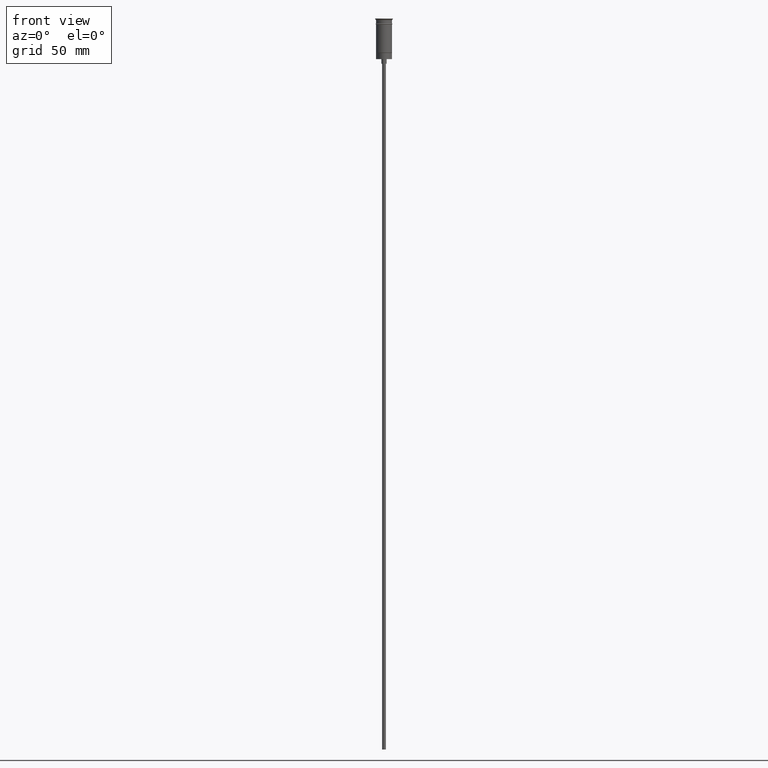
[diagram: clean part render]
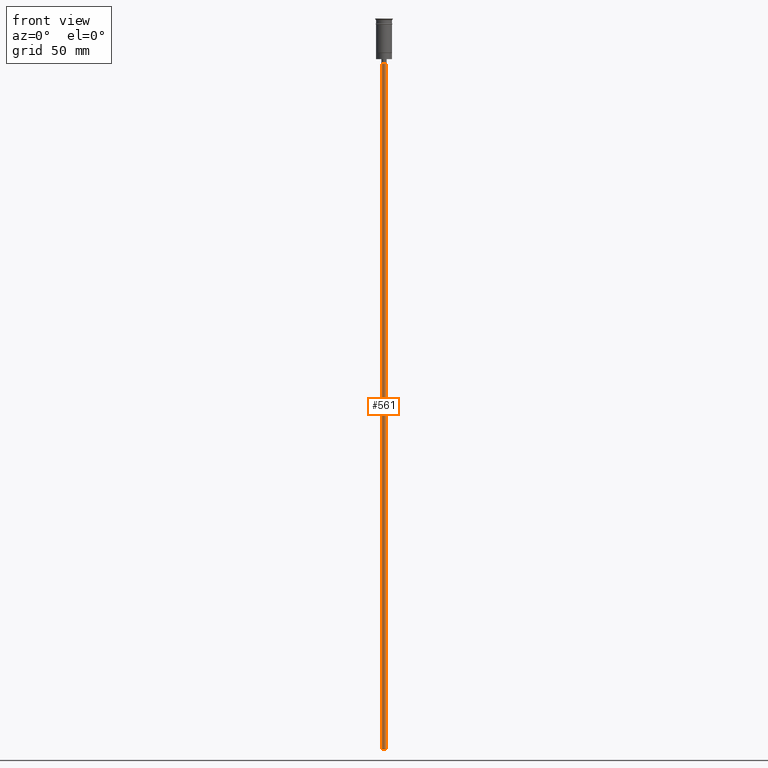
[diagram: same view with one face highlighted and labeled with its STEP entity id]
A machine part, front view. The second image highlights one B-rep face of the part: STEP entity #561.
In plain terms, the highlighted cylindrical surface (edge-blend (fillet) strip) has radius 1.25 mm, axis along (-0, -0, 1).
Its self-contained STEP definition (entity closure, byte-faithful):
#20 = FACE_OUTER_BOUND ( 'NONE', #1313, .T. ) ;
#45 = ORIENTED_EDGE ( 'NONE', *, *, #728, .T. ) ;
#62 = AXIS2_PLACEMENT_3D ( 'NONE', #853, #1214, #95 ) ;
#95 = DIRECTION ( 'NONE',  ( -1.000000000000000000, 0.000000000000000000, 0.000000000000000000 ) ) ;
#113 = VERTEX_POINT ( 'NONE', #1468 ) ;
#268 = DIRECTION ( 'NONE',  ( 1.000000000000000000, 0.000000000000000000, 0.000000000000000000 ) ) ;
#331 = VECTOR ( 'NONE', #1283, 1000.000000000000000 ) ;
#346 = CARTESIAN_POINT ( 'NONE',  ( -1.250000000000000000, 1.530808498934191571E-16, -29.50000000000000000 ) ) ;
#379 = CIRCLE ( 'NONE', #62, 1.250000000000000000 ) ;
#403 = ORIENTED_EDGE ( 'NONE', *, *, #1573, .T. ) ;
#434 = CARTESIAN_POINT ( 'NONE',  ( 0.000000000000000000, 0.000000000000000000, -29.50000000000000000 ) ) ;
#438 = LINE ( 'NONE', #782, #331 ) ;
#450 = EDGE_CURVE ( 'NONE', #1134, #1413, #379, .T. ) ;
#499 = CARTESIAN_POINT ( 'NONE',  ( -1.250000000000000000, 1.530808498934191571E-16, -476.5000000000000568 ) ) ;
#504 = LINE ( 'NONE', #616, #1407 ) ;
#559 = CARTESIAN_POINT ( 'NONE',  ( 1.250000000000000000, 0.000000000000000000, -476.5000000000000568 ) ) ;
#561 = ADVANCED_FACE ( 'NONE', ( #20 ), #1485, .T. ) ;
#586 = ORIENTED_EDGE ( 'NONE', *, *, #1391, .F. ) ;
#605 = AXIS2_PLACEMENT_3D ( 'NONE', #1366, #1499, #268 ) ;
#616 = CARTESIAN_POINT ( 'NONE',  ( -1.250000000000000000, 1.530808498934191571E-16, -476.5000000000000568 ) ) ;
#728 = EDGE_CURVE ( 'NONE', #1134, #113, #438, .T. ) ;
#782 = CARTESIAN_POINT ( 'NONE',  ( 1.250000000000000000, 0.000000000000000000, -476.5000000000000568 ) ) ;
#794 = DIRECTION ( 'NONE',  ( 0.000000000000000000, 0.000000000000000000, -1.000000000000000000 ) ) ;
#833 = VERTEX_POINT ( 'NONE', #346 ) ;
#853 = CARTESIAN_POINT ( 'NONE',  ( 0.000000000000000000, 0.000000000000000000, -476.5000000000000568 ) ) ;
#969 = AXIS2_PLACEMENT_3D ( 'NONE', #434, #794, #1140 ) ;
#1101 = DIRECTION ( 'NONE',  ( -0.000000000000000000, -0.000000000000000000, 1.000000000000000000 ) ) ;
#1134 = VERTEX_POINT ( 'NONE', #559 ) ;
#1140 = DIRECTION ( 'NONE',  ( -1.000000000000000000, 0.000000000000000000, 0.000000000000000000 ) ) ;
#1214 = DIRECTION ( 'NONE',  ( 0.000000000000000000, 0.000000000000000000, -1.000000000000000000 ) ) ;
#1275 = CIRCLE ( 'NONE', #969, 1.250000000000000000 ) ;
#1283 = DIRECTION ( 'NONE',  ( -0.000000000000000000, -0.000000000000000000, 1.000000000000000000 ) ) ;
#1313 = EDGE_LOOP ( 'NONE', ( #586, #1458, #45, #403 ) ) ;
#1366 = CARTESIAN_POINT ( 'NONE',  ( 0.000000000000000000, 0.000000000000000000, -476.5000000000000568 ) ) ;
#1391 = EDGE_CURVE ( 'NONE', #1413, #833, #504, .T. ) ;
#1407 = VECTOR ( 'NONE', #1101, 1000.000000000000000 ) ;
#1413 = VERTEX_POINT ( 'NONE', #499 ) ;
#1458 = ORIENTED_EDGE ( 'NONE', *, *, #450, .F. ) ;
#1468 = CARTESIAN_POINT ( 'NONE',  ( 1.250000000000000000, 0.000000000000000000, -29.50000000000000000 ) ) ;
#1485 = CYLINDRICAL_SURFACE ( 'NONE', #605, 1.250000000000000000 ) ;
#1499 = DIRECTION ( 'NONE',  ( -0.000000000000000000, -0.000000000000000000, 1.000000000000000000 ) ) ;
#1573 = EDGE_CURVE ( 'NONE', #113, #833, #1275, .T. ) ;